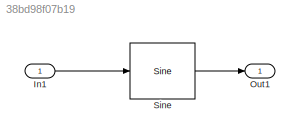
MODEL slx_38bd98f07b19
KIND model
CONFIG AbsTol = auto
CONFIG EnableMultiTasking = off
CONFIG FixedStep = 0.200000
CONFIG MaxStep = auto
CONFIG MinStep = auto
CONFIG RelTol = 1e-3
CONFIG SampleTimeConstraint = Unconstrained
CONFIG Solver = FixedStepDiscrete
CONFIG SolverName = FixedStepDiscrete
CONFIG StartTime = 0.0
CONFIG StopTime = 10
WORKSPACE source: MAT-file member
WORKSPACE lustrec_slx_eps = 0.001
BLOCK [Inport] In1
  IconDisplay = Port number
  OutDataTypeStr = double
  OutMax = 0.9
  OutMin = 0
  PortDimensions = 1
BLOCK [Outport] Out1
  IconDisplay = Port number
BLOCK [Reference] Sine  REF=simulink/Lookup
Tables/Sine
  Ports = [1, 1]
  SourceBlock = simulink/Lookup\nTables/Sine
  SourceProductBaseCode = SL
  SourceProductName = Simulink
  SourceType = Sine and Cosine
LINE In1:1 -> Sine:1
LINE Sine:1 -> Out1:1
